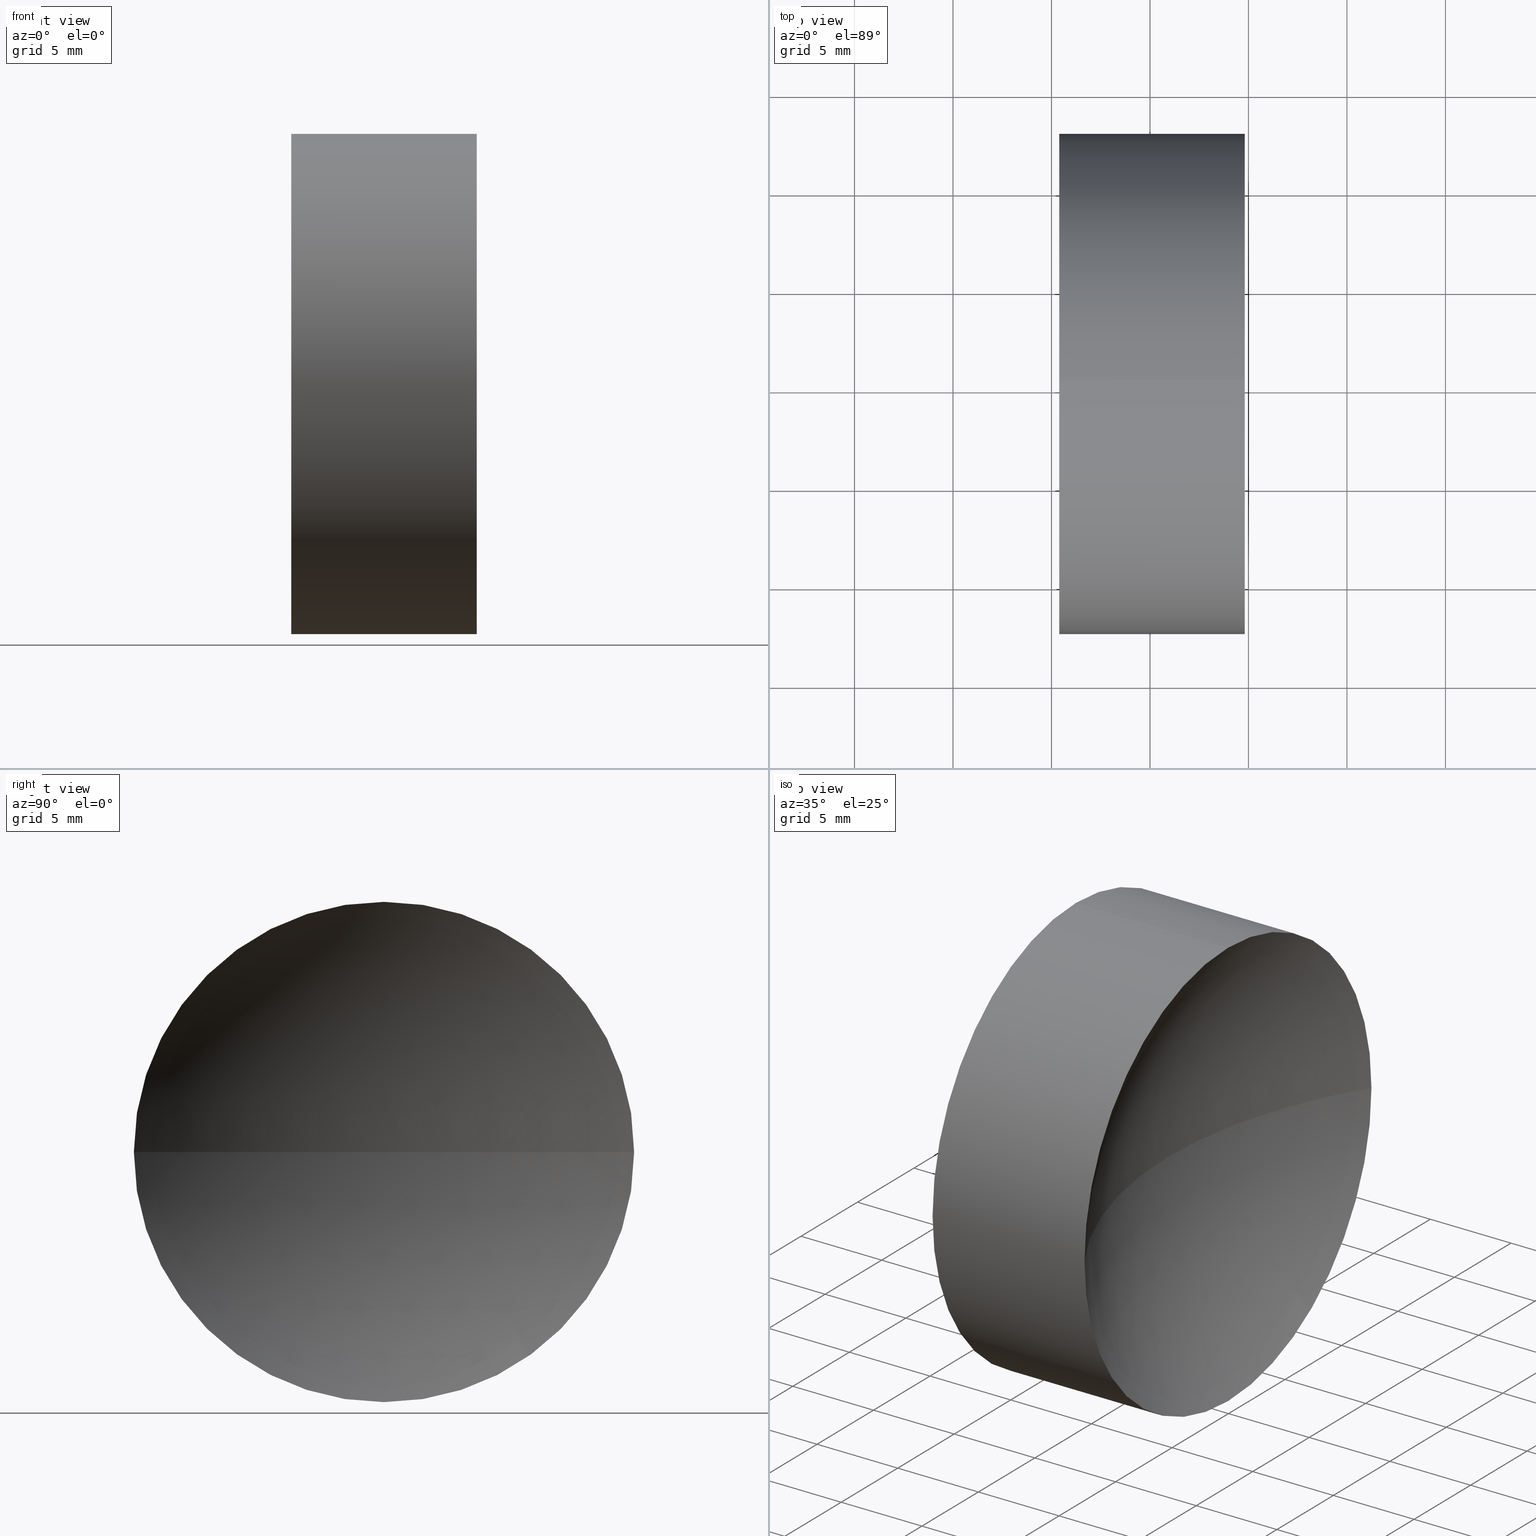
[diagram: canonical four-view strip — front | top / right | iso, engineering-drawing reading convention]
A machine part, canonical four-view strip (front | top / right | iso — engineering-drawing reading convention). The complete STEP part file that produces these views, byte-faithful:
ISO-10303-21;
HEADER;
FILE_DESCRIPTION (( 'STEP AP214' ),
    '1' );
FILE_NAME ('130056.STEP',
    '2019-07-02T05:54:48',
    ( '' ),
    ( '' ),
    'SwSTEP 2.0',
    'SolidWorks 2016',
    '' );
FILE_SCHEMA (( 'AUTOMOTIVE_DESIGN' ));
ENDSEC;

DATA;
#1 = CLOSED_SHELL ( 'NONE', ( #70, #29, #225, #134, #50, #74 ) ) ;
#2 = ORIENTED_EDGE ( 'NONE', *, *, #210, .F. ) ;
#3 = ORIENTED_EDGE ( 'NONE', *, *, #219, .F. ) ;
#4 = CIRCLE ( 'NONE', #38, 23.60000000000000900 ) ;
#5 = LINE ( 'NONE', #185, #155 ) ;
#6 = ADVANCED_BREP_SHAPE_REPRESENTATION ( '130056', ( #124, #182 ), #116 ) ;
#7 = EDGE_CURVE ( 'NONE', #60, #209, #208, .T. ) ;
#8 = ORIENTED_EDGE ( 'NONE', *, *, #64, .T. ) ;
#9 = ORIENTED_EDGE ( 'NONE', *, *, #156, .T. ) ;
#10 = ORIENTED_EDGE ( 'NONE', *, *, #156, .F. ) ;
#11 = PRESENTATION_STYLE_ASSIGNMENT (( #47 ) ) ;
#12 = FILL_AREA_STYLE_COLOUR ( '', #120 ) ;
#13 = DIRECTION ( 'NONE',  ( 0.0000000000000000000, 0.0000000000000000000, -1.000000000000000000 ) ) ;
#14 = DIRECTION ( 'NONE',  ( -1.000000000000000000, -0.0000000000000000000, -0.0000000000000000000 ) ) ;
#15 = CARTESIAN_POINT ( 'NONE',  ( 115.3941588982569800, 65.22260287298739500, 0.0000000000000000000 ) ) ;
#16 = CARTESIAN_POINT ( 'NONE',  ( 124.8112479942016800, 65.22260287298739500, 0.0000000000000000000 ) ) ;
#17 =( GEOMETRIC_REPRESENTATION_CONTEXT ( 3 ) GLOBAL_UNCERTAINTY_ASSIGNED_CONTEXT ( ( #141 ) ) GLOBAL_UNIT_ASSIGNED_CONTEXT ( ( #198, #223, #45 ) ) REPRESENTATION_CONTEXT ( 'NONE', 'WORKASPACE' ) );
#18 = VERTEX_POINT ( 'NONE', #183 ) ;
#19 = CIRCLE ( 'NONE', #212, 12.69999999999998900 ) ;
#20 = AXIS2_PLACEMENT_3D ( 'NONE', #41, #194, #83 ) ;
#21 = ORIENTED_EDGE ( 'NONE', *, *, #197, .T. ) ;
#22 = CARTESIAN_POINT ( 'NONE',  ( 115.3941588982569800, 52.52260287298740600, -1.555301434917137100E-015 ) ) ;
#23 = MECHANICAL_DESIGN_GEOMETRIC_PRESENTATION_REPRESENTATION (  '', ( #147 ), #17 ) ;
#24 = PRODUCT_DEFINITION_CONTEXT ( 'detailed design', #176, 'design' ) ;
#25 = DIRECTION ( 'NONE',  ( -1.000000000000000000, -0.0000000000000000000, -0.0000000000000000000 ) ) ;
#26 = CARTESIAN_POINT ( 'NONE',  ( 144.7027034462293200, 65.22260287298738000, 0.0000000000000000000 ) ) ;
#27 = AXIS2_PLACEMENT_3D ( 'NONE', #48, #89, #172 ) ;
#28 = DIRECTION ( 'NONE',  ( 0.0000000000000000000, 1.224646799147353200E-016, -1.000000000000000000 ) ) ;
#29 = ADVANCED_FACE ( 'NONE', ( #159 ), #162, .T. ) ;
#30 = DIRECTION ( 'NONE',  ( 0.0000000000000000000, 0.0000000000000000000, 1.000000000000000000 ) ) ;
#31 =( LENGTH_UNIT ( ) NAMED_UNIT ( * ) SI_UNIT ( .MILLI., .METRE. ) );
#32 =( NAMED_UNIT ( * ) PLANE_ANGLE_UNIT ( ) SI_UNIT ( $, .RADIAN. ) );
#33 = SURFACE_SIDE_STYLE ('',( #52 ) ) ;
#34 = EDGE_CURVE ( 'NONE', #209, #229, #205, .T. ) ;
#35 = DIRECTION ( 'NONE',  ( 0.0000000000000000000, 0.0000000000000000000, 1.000000000000000000 ) ) ;
#36 = AXIS2_PLACEMENT_3D ( 'NONE', #77, #230, #54 ) ;
#37 = VERTEX_POINT ( 'NONE', #22 ) ;
#38 = AXIS2_PLACEMENT_3D ( 'NONE', #113, #201, #224 ) ;
#39 = ORIENTED_EDGE ( 'NONE', *, *, #181, .F. ) ;
#40 = CARTESIAN_POINT ( 'NONE',  ( 109.9369352260864600, 65.22260287298739500, 0.0000000000000000000 ) ) ;
#41 = CARTESIAN_POINT ( 'NONE',  ( 124.8112479942016800, 65.22260287298739500, 0.0000000000000000000 ) ) ;
#42 = DIRECTION ( 'NONE',  ( 0.0000000000000000000, 0.0000000000000000000, 1.000000000000000000 ) ) ;
#43 = CARTESIAN_POINT ( 'NONE',  ( 115.3941588982569800, 65.22260287298739500, -12.69999999999998900 ) ) ;
#44 = EDGE_CURVE ( 'NONE', #60, #49, #57, .T. ) ;
#45 =( NAMED_UNIT ( * ) SI_UNIT ( $, .STERADIAN. ) SOLID_ANGLE_UNIT ( ) );
#46 = SURFACE_SIDE_STYLE ('',( #62 ) ) ;
#47 = SURFACE_STYLE_USAGE ( .BOTH. , #46 ) ;
#48 = CARTESIAN_POINT ( 'NONE',  ( 144.7027034462293200, 65.22260287298738000, 0.0000000000000000000 ) ) ;
#49 = VERTEX_POINT ( 'NONE', #105 ) ;
#50 = ADVANCED_FACE ( 'NONE', ( #109 ), #192, .T. ) ;
#51 =( NAMED_UNIT ( * ) PLANE_ANGLE_UNIT ( ) SI_UNIT ( $, .RADIAN. ) );
#52 = SURFACE_STYLE_FILL_AREA ( #226 ) ;
#53 = VERTEX_POINT ( 'NONE', #133 ) ;
#54 = DIRECTION ( 'NONE',  ( 0.0000000000000000000, 1.000000000000000000, 0.0000000000000000000 ) ) ;
#55 = ORIENTED_EDGE ( 'NONE', *, *, #138, .F. ) ;
#56 = APPLICATION_CONTEXT ( 'automotive_design' ) ;
#57 = CIRCLE ( 'NONE', #27, 23.60000000000000900 ) ;
#58 = SPHERICAL_SURFACE ( 'NONE', #220, 23.60000000000000900 ) ;
#59 = ORIENTED_EDGE ( 'NONE', *, *, #44, .F. ) ;
#60 = VERTEX_POINT ( 'NONE', #148 ) ;
#61 = ORIENTED_EDGE ( 'NONE', *, *, #34, .T. ) ;
#62 = SURFACE_STYLE_FILL_AREA ( #146 ) ;
#63 = FACE_OUTER_BOUND ( 'NONE', #143, .T. ) ;
#64 = EDGE_CURVE ( 'NONE', #229, #49, #4, .T. ) ;
#65 = PRODUCT_DEFINITION ( 'δ֪', '', #91, #24 ) ;
#66 = DIRECTION ( 'NONE',  ( -1.000000000000000000, -0.0000000000000000000, -0.0000000000000000000 ) ) ;
#67 = DIRECTION ( 'NONE',  ( 0.0000000000000000000, 1.000000000000000000, 0.0000000000000000000 ) ) ;
#68 = CARTESIAN_POINT ( 'NONE',  ( 109.9369352260864600, 65.22260287298739500, 12.69999999999998900 ) ) ;
#69 = DIRECTION ( 'NONE',  ( 0.0000000000000000000, 0.0000000000000000000, 1.000000000000000000 ) ) ;
#70 = ADVANCED_FACE ( 'NONE', ( #195 ), #100, .F. ) ;
#71 = AXIS2_PLACEMENT_3D ( 'NONE', #171, #13, #67 ) ;
#72 = DIRECTION ( 'NONE',  ( -1.000000000000000000, -0.0000000000000000000, -0.0000000000000000000 ) ) ;
#73 = DIRECTION ( 'NONE',  ( 0.0000000000000000000, 1.000000000000000000, 1.224646799147353500E-016 ) ) ;
#74 = ADVANCED_FACE ( 'NONE', ( #94 ), #169, .F. ) ;
#75 = CARTESIAN_POINT ( 'NONE',  ( 0.0000000000000000000, 0.0000000000000000000, 0.0000000000000000000 ) ) ;
#76 = ORIENTED_EDGE ( 'NONE', *, *, #96, .F. ) ;
#77 = CARTESIAN_POINT ( 'NONE',  ( 144.7027034462293200, 65.22260287298738000, 0.0000000000000000000 ) ) ;
#78 = APPLICATION_PROTOCOL_DEFINITION ( 'draft international standard', 'automotive_design', 1998, #56 ) ;
#79 = AXIS2_PLACEMENT_3D ( 'NONE', #142, #66, #126 ) ;
#80 = AXIS2_PLACEMENT_3D ( 'NONE', #118, #136, #35 ) ;
#81 = CIRCLE ( 'NONE', #107, 12.69999999999998900 ) ;
#82 = AXIS2_PLACEMENT_3D ( 'NONE', #40, #168, #42 ) ;
#83 = DIRECTION ( 'NONE',  ( 0.0000000000000000000, 0.0000000000000000000, 1.000000000000000000 ) ) ;
#84 = CIRCLE ( 'NONE', #80, 12.69999999999998900 ) ;
#85 = AXIS2_PLACEMENT_3D ( 'NONE', #115, #111, #199 ) ;
#86 = CARTESIAN_POINT ( 'NONE',  ( 124.8112479942016800, 65.22260287298739500, 12.69999999999998900 ) ) ;
#87 = DIRECTION ( 'NONE',  ( -1.000000000000000000, -0.0000000000000000000, -0.0000000000000000000 ) ) ;
#88 = CARTESIAN_POINT ( 'NONE',  ( 124.8112479942016800, 65.22260287298739500, 0.0000000000000000000 ) ) ;
#89 = DIRECTION ( 'NONE',  ( 0.0000000000000000000, 1.224646799147353200E-016, -1.000000000000000000 ) ) ;
#90 = CARTESIAN_POINT ( 'NONE',  ( 115.3941588982569800, 65.22260287298739500, 0.0000000000000000000 ) ) ;
#91 = PRODUCT_DEFINITION_FORMATION_WITH_SPECIFIED_SOURCE ( '�κ�', '', #103, .NOT_KNOWN. ) ;
#92 = EDGE_LOOP ( 'NONE', ( #114, #21, #123, #193, #117, #3 ) ) ;
#93 = PRODUCT_CONTEXT ( 'NONE', #56, 'mechanical' ) ;
#94 = FACE_OUTER_BOUND ( 'NONE', #108, .T. ) ;
#95 = UNCERTAINTY_MEASURE_WITH_UNIT (LENGTH_MEASURE( 1.000000000000000100E-005 ), #31, 'distance_accuracy_value', 'NONE');
#96 = EDGE_CURVE ( 'NONE', #53, #37, #232, .T. ) ;
#97 = VERTEX_POINT ( 'NONE', #43 ) ;
#98 = PRESENTATION_LAYER_ASSIGNMENT (  '', '', ( #147 ) ) ;
#99 = ORIENTED_EDGE ( 'NONE', *, *, #101, .T. ) ;
#100 = SPHERICAL_SURFACE ( 'NONE', #71, 23.59999999999999400 ) ;
#101 = EDGE_CURVE ( 'NONE', #37, #164, #144, .T. ) ;
#102 = COLOUR_RGB ( '',1.000000000000000000, 1.000000000000000000, 1.000000000000000000 ) ;
#103 = PRODUCT ( '130056', '130056', '', ( #93 ) ) ;
#104 = EDGE_LOOP ( 'NONE', ( #39, #190, #99, #203 ) ) ;
#105 = CARTESIAN_POINT ( 'NONE',  ( 121.1027034462293100, 65.22260287298738000, 0.0000000000000000000 ) ) ;
#106 = EDGE_LOOP ( 'NONE', ( #149, #157, #153, #211 ) ) ;
#107 = AXIS2_PLACEMENT_3D ( 'NONE', #16, #216, #30 ) ;
#108 = EDGE_LOOP ( 'NONE', ( #76, #204, #228, #158 ) ) ;
#109 = FACE_OUTER_BOUND ( 'NONE', #92, .T. ) ;
#110 = LINE ( 'NONE', #68, #121 ) ;
#111 = DIRECTION ( 'NONE',  ( 0.0000000000000000000, 0.0000000000000000000, -1.000000000000000000 ) ) ;
#112 = AXIS2_PLACEMENT_3D ( 'NONE', #222, #128, #215 ) ;
#113 = CARTESIAN_POINT ( 'NONE',  ( 144.7027034462293200, 65.22260287298738000, 0.0000000000000000000 ) ) ;
#114 = ORIENTED_EDGE ( 'NONE', *, *, #163, .F. ) ;
#115 = CARTESIAN_POINT ( 'NONE',  ( 95.50270344622933300, 65.22260287298739500, 0.0000000000000000000 ) ) ;
#116 =( GEOMETRIC_REPRESENTATION_CONTEXT ( 3 ) GLOBAL_UNCERTAINTY_ASSIGNED_CONTEXT ( ( #186 ) ) GLOBAL_UNIT_ASSIGNED_CONTEXT ( ( #154, #51, #217 ) ) REPRESENTATION_CONTEXT ( 'NONE', 'WORKASPACE' ) );
#117 = ORIENTED_EDGE ( 'NONE', *, *, #101, .F. ) ;
#118 = CARTESIAN_POINT ( 'NONE',  ( 115.3941588982569800, 65.22260287298739500, 0.0000000000000000000 ) ) ;
#119 = DIRECTION ( 'NONE',  ( 0.0000000000000000000, 0.0000000000000000000, 1.000000000000000000 ) ) ;
#120 = COLOUR_RGB ( '',1.000000000000000000, 1.000000000000000000, 1.000000000000000000 ) ;
#121 = VECTOR ( 'NONE', #196, 1000.000000000000000 ) ;
#122 = ORIENTED_EDGE ( 'NONE', *, *, #163, .T. ) ;
#123 = ORIENTED_EDGE ( 'NONE', *, *, #7, .T. ) ;
#124 = MANIFOLD_SOLID_BREP ( '��ת1', #1 ) ;
#125 = EDGE_CURVE ( 'NONE', #18, #97, #19, .T. ) ;
#126 = DIRECTION ( 'NONE',  ( 0.0000000000000000000, 0.0000000000000000000, 1.000000000000000000 ) ) ;
#127 = PRESENTATION_LAYER_ASSIGNMENT (  '', '', ( #191 ) ) ;
#128 = DIRECTION ( 'NONE',  ( -1.000000000000000000, -0.0000000000000000000, -0.0000000000000000000 ) ) ;
#129 = PRODUCT_DEFINITION_SHAPE ( 'NONE', 'NONE',  #65 ) ;
#130 = DIRECTION ( 'NONE',  ( 0.0000000000000000000, 0.0000000000000000000, -1.000000000000000000 ) ) ;
#131 = AXIS2_PLACEMENT_3D ( 'NONE', #187, #25, #213 ) ;
#132 = CARTESIAN_POINT ( 'NONE',  ( 124.8112479942016800, 65.22260287298739500, -12.69999999999998900 ) ) ;
#133 = CARTESIAN_POINT ( 'NONE',  ( 119.1027034462293400, 65.22260287298739500, 0.0000000000000000000 ) ) ;
#134 = ADVANCED_FACE ( 'NONE', ( #63 ), #58, .F. ) ;
#135 = PRODUCT_RELATED_PRODUCT_CATEGORY ( 'part', '', ( #103 ) ) ;
#136 = DIRECTION ( 'NONE',  ( -1.000000000000000000, -0.0000000000000000000, -0.0000000000000000000 ) ) ;
#137 = DIRECTION ( 'NONE',  ( 0.0000000000000000000, 0.0000000000000000000, 1.000000000000000000 ) ) ;
#138 = EDGE_CURVE ( 'NONE', #209, #164, #110, .T. ) ;
#139 = MECHANICAL_DESIGN_GEOMETRIC_PRESENTATION_REPRESENTATION (  '', ( #191 ), #166 ) ;
#140 = CIRCLE ( 'NONE', #161, 12.69999999999998900 ) ;
#141 = UNCERTAINTY_MEASURE_WITH_UNIT (LENGTH_MEASURE( 1.000000000000000100E-005 ), #198, 'distance_accuracy_value', 'NONE');
#142 = CARTESIAN_POINT ( 'NONE',  ( 124.8112479942016800, 65.22260287298739500, 0.0000000000000000000 ) ) ;
#143 = EDGE_LOOP ( 'NONE', ( #59, #175, #10, #8 ) ) ;
#144 = CIRCLE ( 'NONE', #131, 12.69999999999998900 ) ;
#145 = DIRECTION ( 'NONE',  ( 0.0000000000000000000, 0.0000000000000000000, 1.000000000000000000 ) ) ;
#146 = FILL_AREA_STYLE ('',( #12 ) ) ;
#147 = STYLED_ITEM ( 'NONE', ( #11 ), #124 ) ;
#148 = CARTESIAN_POINT ( 'NONE',  ( 124.8112479942016800, 52.52260287298738500, -1.555301434917137100E-015 ) ) ;
#149 = ORIENTED_EDGE ( 'NONE', *, *, #7, .F. ) ;
#150 = AXIS2_PLACEMENT_3D ( 'NONE', #88, #14, #145 ) ;
#151 = FILL_AREA_STYLE_COLOUR ( '', #102 ) ;
#152 = SHAPE_DEFINITION_REPRESENTATION ( #129, #6 ) ;
#153 = ORIENTED_EDGE ( 'NONE', *, *, #64, .F. ) ;
#154 =( LENGTH_UNIT ( ) NAMED_UNIT ( * ) SI_UNIT ( .MILLI., .METRE. ) );
#155 = VECTOR ( 'NONE', #87, 1000.000000000000000 ) ;
#156 = EDGE_CURVE ( 'NONE', #229, #167, #207, .T. ) ;
#157 = ORIENTED_EDGE ( 'NONE', *, *, #44, .T. ) ;
#158 = ORIENTED_EDGE ( 'NONE', *, *, #219, .T. ) ;
#159 = FACE_OUTER_BOUND ( 'NONE', #200, .T. ) ;
#160 = ORIENTED_EDGE ( 'NONE', *, *, #125, .F. ) ;
#161 = AXIS2_PLACEMENT_3D ( 'NONE', #90, #173, #119 ) ;
#162 = CYLINDRICAL_SURFACE ( 'NONE', #82, 12.69999999999998900 ) ;
#163 = EDGE_CURVE ( 'NONE', #167, #97, #5, .T. ) ;
#164 = VERTEX_POINT ( 'NONE', #214 ) ;
#165 = PRESENTATION_STYLE_ASSIGNMENT (( #206 ) ) ;
#166 =( GEOMETRIC_REPRESENTATION_CONTEXT ( 3 ) GLOBAL_UNCERTAINTY_ASSIGNED_CONTEXT ( ( #95 ) ) GLOBAL_UNIT_ASSIGNED_CONTEXT ( ( #31, #32, #178 ) ) REPRESENTATION_CONTEXT ( 'NONE', 'WORKASPACE' ) );
#167 = VERTEX_POINT ( 'NONE', #132 ) ;
#168 = DIRECTION ( 'NONE',  ( -1.000000000000000000, -0.0000000000000000000, -0.0000000000000000000 ) ) ;
#169 = SPHERICAL_SURFACE ( 'NONE', #85, 23.59999999999999400 ) ;
#170 = AXIS2_PLACEMENT_3D ( 'NONE', #189, #28, #73 ) ;
#171 = CARTESIAN_POINT ( 'NONE',  ( 95.50270344622933300, 65.22260287298739500, 0.0000000000000000000 ) ) ;
#172 = DIRECTION ( 'NONE',  ( 0.0000000000000000000, 1.000000000000000000, 1.224646799147353200E-016 ) ) ;
#173 = DIRECTION ( 'NONE',  ( -1.000000000000000000, -0.0000000000000000000, -0.0000000000000000000 ) ) ;
#174 = CARTESIAN_POINT ( 'NONE',  ( 124.8112479942016800, 77.92260287298738300, 0.0000000000000000000 ) ) ;
#175 = ORIENTED_EDGE ( 'NONE', *, *, #197, .F. ) ;
#176 = APPLICATION_CONTEXT ( 'automotive_design' ) ;
#177 = AXIS2_PLACEMENT_3D ( 'NONE', #218, #137, #227 ) ;
#178 =( NAMED_UNIT ( * ) SI_UNIT ( $, .STERADIAN. ) SOLID_ANGLE_UNIT ( ) );
#179 = APPLICATION_PROTOCOL_DEFINITION ( 'draft international standard', 'automotive_design', 1998, #176 ) ;
#180 = FACE_OUTER_BOUND ( 'NONE', #106, .T. ) ;
#181 = EDGE_CURVE ( 'NONE', #53, #18, #184, .T. ) ;
#182 = AXIS2_PLACEMENT_3D ( 'NONE', #75, #202, #231 ) ;
#183 = CARTESIAN_POINT ( 'NONE',  ( 115.3941588982569800, 77.92260287298738300, 0.0000000000000000000 ) ) ;
#184 = CIRCLE ( 'NONE', #177, 23.59999999999999400 ) ;
#185 = CARTESIAN_POINT ( 'NONE',  ( 109.9369352260864600, 65.22260287298739500, -12.69999999999998900 ) ) ;
#186 = UNCERTAINTY_MEASURE_WITH_UNIT (LENGTH_MEASURE( 1.000000000000000100E-005 ), #154, 'distance_accuracy_value', 'NONE');
#187 = CARTESIAN_POINT ( 'NONE',  ( 115.3941588982569800, 65.22260287298739500, 0.0000000000000000000 ) ) ;
#188 = DIRECTION ( 'NONE',  ( 0.0000000000000000000, 1.000000000000000000, 0.0000000000000000000 ) ) ;
#189 = CARTESIAN_POINT ( 'NONE',  ( 95.50270344622933300, 65.22260287298739500, 0.0000000000000000000 ) ) ;
#190 = ORIENTED_EDGE ( 'NONE', *, *, #96, .T. ) ;
#191 = STYLED_ITEM ( 'NONE', ( #165 ), #6 ) ;
#192 = CYLINDRICAL_SURFACE ( 'NONE', #112, 12.69999999999998900 ) ;
#193 = ORIENTED_EDGE ( 'NONE', *, *, #138, .T. ) ;
#194 = DIRECTION ( 'NONE',  ( -1.000000000000000000, -0.0000000000000000000, -0.0000000000000000000 ) ) ;
#195 = FACE_OUTER_BOUND ( 'NONE', #104, .T. ) ;
#196 = DIRECTION ( 'NONE',  ( -1.000000000000000000, -0.0000000000000000000, -0.0000000000000000000 ) ) ;
#197 = EDGE_CURVE ( 'NONE', #167, #60, #81, .T. ) ;
#198 =( LENGTH_UNIT ( ) NAMED_UNIT ( * ) SI_UNIT ( .MILLI., .METRE. ) );
#199 = DIRECTION ( 'NONE',  ( 0.0000000000000000000, 1.000000000000000000, 0.0000000000000000000 ) ) ;
#200 = EDGE_LOOP ( 'NONE', ( #9, #122, #160, #2, #55, #61 ) ) ;
#201 = DIRECTION ( 'NONE',  ( 0.0000000000000000000, 0.0000000000000000000, 1.000000000000000000 ) ) ;
#202 = DIRECTION ( 'NONE',  ( 0.0000000000000000000, 0.0000000000000000000, 1.000000000000000000 ) ) ;
#203 = ORIENTED_EDGE ( 'NONE', *, *, #210, .T. ) ;
#204 = ORIENTED_EDGE ( 'NONE', *, *, #181, .T. ) ;
#205 = CIRCLE ( 'NONE', #20, 12.69999999999998900 ) ;
#206 = SURFACE_STYLE_USAGE ( .BOTH. , #33 ) ;
#207 = CIRCLE ( 'NONE', #150, 12.69999999999998900 ) ;
#208 = CIRCLE ( 'NONE', #79, 12.69999999999998900 ) ;
#209 = VERTEX_POINT ( 'NONE', #86 ) ;
#210 = EDGE_CURVE ( 'NONE', #164, #18, #140, .T. ) ;
#211 = ORIENTED_EDGE ( 'NONE', *, *, #34, .F. ) ;
#212 = AXIS2_PLACEMENT_3D ( 'NONE', #15, #72, #69 ) ;
#213 = DIRECTION ( 'NONE',  ( 0.0000000000000000000, 0.0000000000000000000, 1.000000000000000000 ) ) ;
#214 = CARTESIAN_POINT ( 'NONE',  ( 115.3941588982569800, 65.22260287298739500, 12.69999999999998900 ) ) ;
#215 = DIRECTION ( 'NONE',  ( 0.0000000000000000000, 0.0000000000000000000, 1.000000000000000000 ) ) ;
#216 = DIRECTION ( 'NONE',  ( -1.000000000000000000, -0.0000000000000000000, -0.0000000000000000000 ) ) ;
#217 =( NAMED_UNIT ( * ) SI_UNIT ( $, .STERADIAN. ) SOLID_ANGLE_UNIT ( ) );
#218 = CARTESIAN_POINT ( 'NONE',  ( 95.50270344622933300, 65.22260287298739500, 0.0000000000000000000 ) ) ;
#219 = EDGE_CURVE ( 'NONE', #97, #37, #84, .T. ) ;
#220 = AXIS2_PLACEMENT_3D ( 'NONE', #26, #130, #188 ) ;
#221 = SPHERICAL_SURFACE ( 'NONE', #36, 23.60000000000000900 ) ;
#222 = CARTESIAN_POINT ( 'NONE',  ( 109.9369352260864600, 65.22260287298739500, 0.0000000000000000000 ) ) ;
#223 =( NAMED_UNIT ( * ) PLANE_ANGLE_UNIT ( ) SI_UNIT ( $, .RADIAN. ) );
#224 = DIRECTION ( 'NONE',  ( 1.000000000000000000, 0.0000000000000000000, 0.0000000000000000000 ) ) ;
#225 = ADVANCED_FACE ( 'NONE', ( #180 ), #221, .F. ) ;
#226 = FILL_AREA_STYLE ('',( #151 ) ) ;
#227 = DIRECTION ( 'NONE',  ( 1.000000000000000000, 0.0000000000000000000, 0.0000000000000000000 ) ) ;
#228 = ORIENTED_EDGE ( 'NONE', *, *, #125, .T. ) ;
#229 = VERTEX_POINT ( 'NONE', #174 ) ;
#230 = DIRECTION ( 'NONE',  ( 0.0000000000000000000, 0.0000000000000000000, -1.000000000000000000 ) ) ;
#231 = DIRECTION ( 'NONE',  ( 1.000000000000000000, 0.0000000000000000000, 0.0000000000000000000 ) ) ;
#232 = CIRCLE ( 'NONE', #170, 23.59999999999999400 ) ;
ENDSEC;
END-ISO-10303-21;
